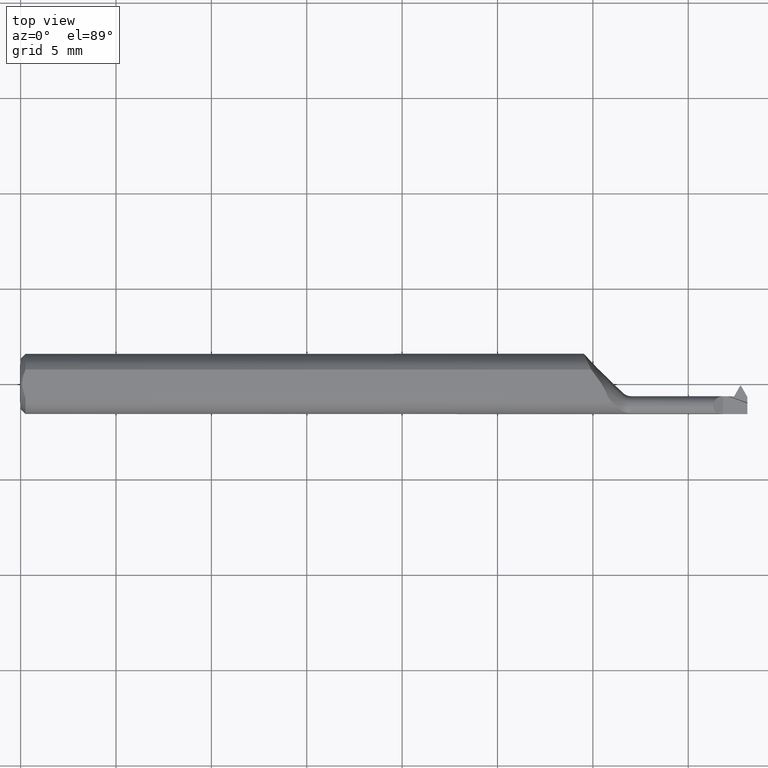
[diagram: clean part render]
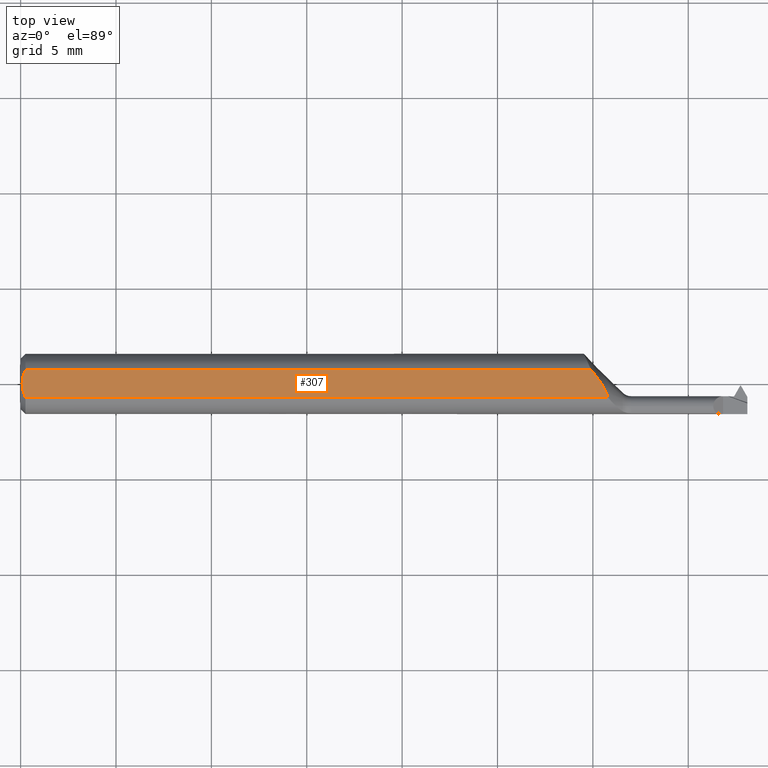
[diagram: same view with one face highlighted and labeled with its STEP entity id]
A machine part, top view. The second image highlights one B-rep face of the part: STEP entity #307.
In plain terms, the highlighted planar face has unit normal (-0, 0, -1).
Its self-contained STEP definition (entity closure, byte-faithful):
#29 = CARTESIAN_POINT ( 'NONE',  ( 0.002999999999999721206, 6.780866595677978703E-18, 0.05534999999999997561 ) ) ;
#59 = VECTOR ( 'NONE', #876, 39.37007874015748143 ) ;
#85 = CARTESIAN_POINT ( 'NONE',  ( 0.009999999999999620304, 0.02870365830342891042, 0.05534999999999997561 ) ) ;
#88 = CARTESIAN_POINT ( 'NONE',  ( 0.009999999999999623773, -0.02870365830342891042, 0.05534999999999997561 ) ) ;
#125 = LINE ( 'NONE', #997, #933 ) ;
#132 = DIRECTION ( 'NONE',  ( -0.000000000000000000, 0.000000000000000000, -1.000000000000000000 ) ) ;
#142 = CARTESIAN_POINT ( 'NONE',  ( 1.212555030127062894, -0.02870365830342886532, 0.05534999999999997561 ) ) ;
#207 = EDGE_CURVE ( 'NONE', #807, #812, #555, .T. ) ;
#235 = B_SPLINE_CURVE_WITH_KNOTS ( 'NONE', 3,
 ( #374, #365, #848, #517 ),
 .UNSPECIFIED., .F., .F.,
 ( 4, 4 ),
 ( 0.0009720455231643164960, 0.001720363795689367620 ),
 .UNSPECIFIED. ) ;
#262 = ORIENTED_EDGE ( 'NONE', *, *, #351, .F. ) ;
#268 = EDGE_CURVE ( 'NONE', #594, #691, #235, .T. ) ;
#277 = CARTESIAN_POINT ( 'NONE',  ( 0.000000000000000000, 0.1749999999999999889, 0.05534999999999997561 ) ) ;
#297 = ORIENTED_EDGE ( 'NONE', *, *, #984, .T. ) ;
#307 = ADVANCED_FACE ( 'NONE', ( #983 ), #529, .F. ) ;
#308 = ORIENTED_EDGE ( 'NONE', *, *, #604, .F. ) ;
#316 = CARTESIAN_POINT ( 'NONE',  ( 0.009999999999999623773, -0.02870365830342891042, 0.05534999999999997561 ) ) ;
#331 = CARTESIAN_POINT ( 'NONE',  ( 1.177645972266010643, 0.02870365830342895205, 0.05534999999999997561 ) ) ;
#351 = EDGE_CURVE ( 'NONE', #594, #638, #125, .T. ) ;
#365 = CARTESIAN_POINT ( 'NONE',  ( 0.005875215112612026079, 0.01974381301089248031, 0.05534999999999997561 ) ) ;
#374 = CARTESIAN_POINT ( 'NONE',  ( 0.009999999999999620304, 0.02870365830342891042, 0.05534999999999997561 ) ) ;
#381 = ORIENTED_EDGE ( 'NONE', *, *, #268, .T. ) ;
#478 = CARTESIAN_POINT ( 'NONE',  ( 1.499999999999999778, -0.02870365830342891042, 0.05534999999999997561 ) ) ;
#516 = CARTESIAN_POINT ( 'NONE',  ( 1.177645972266010643, 0.02870365830342895205, 0.05534999999999997561 ) ) ;
#517 = CARTESIAN_POINT ( 'NONE',  ( 0.002999999999999721206, 6.780866595677978703E-18, 0.05534999999999997561 ) ) ;
#529 = PLANE ( 'NONE',  #717 ) ;
#555 = LINE ( 'NONE', #478, #59 ) ;
#558 = CARTESIAN_POINT ( 'NONE',  ( 0.002999999999999714267, -0.01001879996815455316, 0.05534999999999997561 ) ) ;
#594 = VERTEX_POINT ( 'NONE', #85 ) ;
#604 = EDGE_CURVE ( 'NONE', #638, #807, #803, .T. ) ;
#614 = B_SPLINE_CURVE_WITH_KNOTS ( 'NONE', 3,
 ( #732, #558, #727, #88 ),
 .UNSPECIFIED., .F., .F.,
 ( 4, 4 ),
 ( 0.001720363795689367620, 0.002470735736817571311 ),
 .UNSPECIFIED. ) ;
#638 = VERTEX_POINT ( 'NONE', #516 ) ;
#640 = CARTESIAN_POINT ( 'NONE',  ( 1.191568727354932244, 0.01087549412584695729, 0.05534999999999998949 ) ) ;
#691 = VERTEX_POINT ( 'NONE', #29 ) ;
#717 = AXIS2_PLACEMENT_3D ( 'NONE', #277, #132, #763 ) ;
#723 = CARTESIAN_POINT ( 'NONE',  ( 1.184712155253447641, 0.01990296943021408957, 0.05534999999999997561 ) ) ;
#727 = CARTESIAN_POINT ( 'NONE',  ( 0.005906535074838407257, -0.01981184613839810996, 0.05534999999999997561 ) ) ;
#732 = CARTESIAN_POINT ( 'NONE',  ( 0.002999999999999721206, 6.780866595677978703E-18, 0.05534999999999997561 ) ) ;
#751 = DIRECTION ( 'NONE',  ( 1.000000000000000000, 0.000000000000000000, 0.000000000000000000 ) ) ;
#763 = DIRECTION ( 'NONE',  ( -1.000000000000000000, 0.000000000000000000, 0.000000000000000000 ) ) ;
#803 = B_SPLINE_CURVE_WITH_KNOTS ( 'NONE', 3,
 ( #331, #723, #640, #893, #815, #961 ),
 .UNSPECIFIED., .F., .F.,
 ( 4, 2, 4 ),
 ( 0.004296694103987497640, 0.005156719757166194906, 0.006016745410344891305 ),
 .UNSPECIFIED. ) ;
#807 = VERTEX_POINT ( 'NONE', #142 ) ;
#812 = VERTEX_POINT ( 'NONE', #316 ) ;
#815 = CARTESIAN_POINT ( 'NONE',  ( 1.209304503121092056, -0.01771870928250380769, 0.05534999999999998255 ) ) ;
#821 = EDGE_LOOP ( 'NONE', ( #308, #262, #381, #297, #910 ) ) ;
#848 = CARTESIAN_POINT ( 'NONE',  ( 0.002999999999999719905, 0.009991379839804729115, 0.05534999999999997561 ) ) ;
#876 = DIRECTION ( 'NONE',  ( -1.000000000000000000, -0.000000000000000000, -0.000000000000000000 ) ) ;
#893 = CARTESIAN_POINT ( 'NONE',  ( 1.203807076401371301, -0.007960925841556861296, 0.05534999999999997561 ) ) ;
#910 = ORIENTED_EDGE ( 'NONE', *, *, #207, .F. ) ;
#933 = VECTOR ( 'NONE', #751, 39.37007874015748143 ) ;
#961 = CARTESIAN_POINT ( 'NONE',  ( 1.212555030127062894, -0.02870365830342886532, 0.05534999999999997561 ) ) ;
#983 = FACE_OUTER_BOUND ( 'NONE', #821, .T. ) ;
#984 = EDGE_CURVE ( 'NONE', #691, #812, #614, .T. ) ;
#997 = CARTESIAN_POINT ( 'NONE',  ( 1.499999999999999778, 0.02870365830342891042, 0.05534999999999997561 ) ) ;